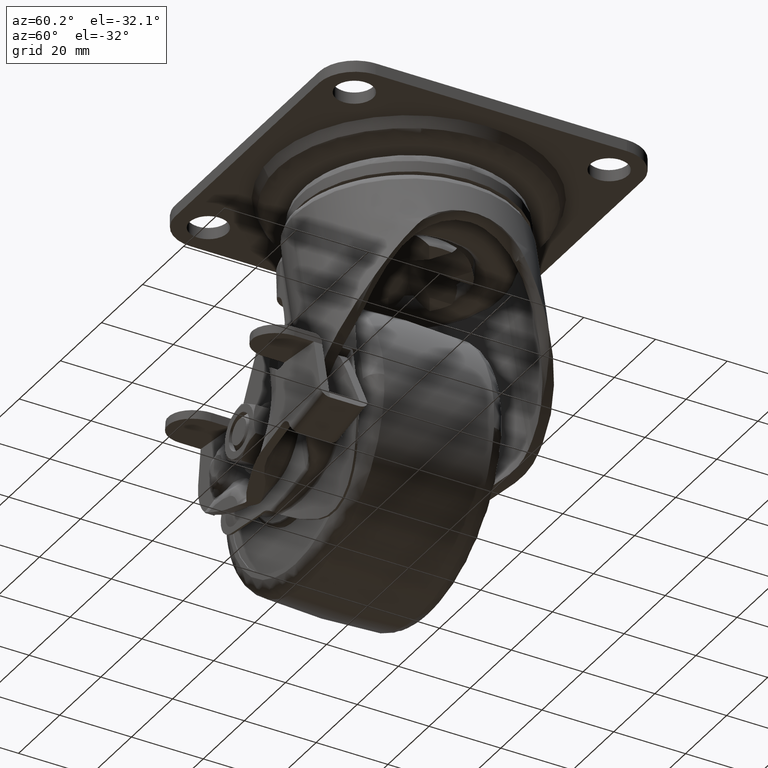
[diagram: clean part render]
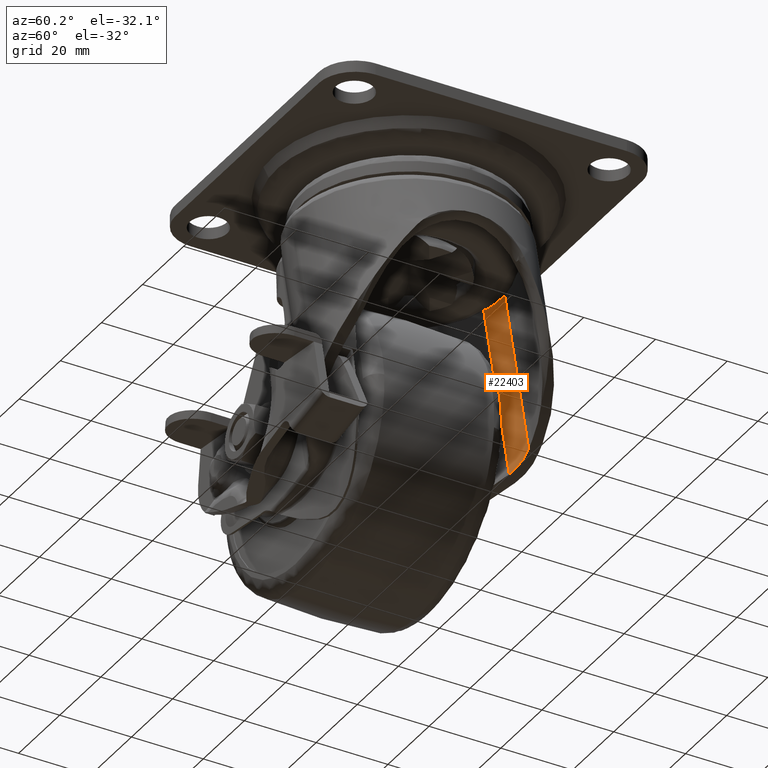
[diagram: same view with one face highlighted and labeled with its STEP entity id]
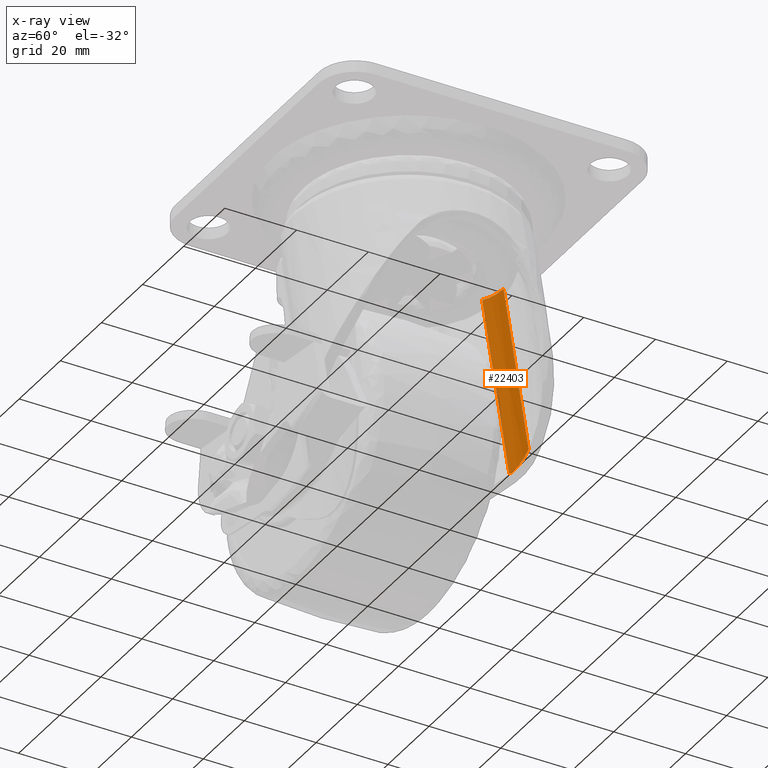
[diagram: x-ray of the same camera — body ghosted, the highlighted face saturated]
A machine part, auxiliary view. The second image highlights one B-rep face of the part: STEP entity #22403.
The next image is the same camera in x-ray: the body ghosted, the highlighted face saturated — about 2% of this face is hidden behind the body in this view.
In plain terms, the highlighted face is a freeform B-spline surface patch.
Its self-contained STEP definition (entity closure, byte-faithful):
#19096=CARTESIAN_POINT('',(8.629060861656448,28.449999999999999,-70.491567954269101));
#19097=VERTEX_POINT('',#19096);
#19111=CARTESIAN_POINT('',(2.794386821421890,26.404238769325900,-75.126501763025004));
#19112=VERTEX_POINT('',#19111);
#19113=CARTESIAN_POINT('',(2.794386821421890,26.404238769325900,-75.126501763025004));
#19114=CARTESIAN_POINT('',(3.250977676487589,26.750979657473941,-74.803486883613701));
#19115=CARTESIAN_POINT('',(3.718971263196048,27.050097362103369,-74.463825610801138));
#19116=CARTESIAN_POINT('',(4.673322900904312,27.561525688294029,-73.750958570744487));
#19117=CARTESIAN_POINT('',(5.159704318522079,27.773781589330511,-73.377747254189842));
#19118=CARTESIAN_POINT('',(5.777559535394476,27.986533044776451,-72.889275521287814));
#19119=CARTESIAN_POINT('',(5.901628179742154,28.026442931752921,-72.790480177604863));
#19120=CARTESIAN_POINT('',(6.150734107770560,28.100978503927092,-72.590650097973935));
#19121=CARTESIAN_POINT('',(6.275842320288908,28.135612351137461,-72.489554932290403));
#19122=CARTESIAN_POINT('',(6.650136886469880,28.230989270466701,-72.184857619424022));
#19123=CARTESIAN_POINT('',(6.899087578984503,28.283474197994590,-71.979210941133573));
#19124=CARTESIAN_POINT('',(7.644001883590186,28.408912964815340,-71.354700333325638));
#19125=CARTESIAN_POINT('',(8.138016356273411,28.450000000000010,-70.928277039378102));
#19126=CARTESIAN_POINT('',(8.629060861656448,28.449999999999999,-70.491567954269101));
#19127=B_SPLINE_CURVE_WITH_KNOTS('',3,(#19113,#19114,#19115,#19116,#19117,#19118,#19119,#19120,#19121,#19122,#19123,#19124,#19125,#19126),.UNSPECIFIED.,.F.,.U.,(4,2,2,2,2,2,4),(0.0,0.250000000000003,0.500000000000005,0.562500000000006,0.625000000000006,0.750000000000003,1.0),.UNSPECIFIED.);
#19128=EDGE_CURVE('',#19112,#19097,#19127,.T.);
#22359=CARTESIAN_POINT('',(-3.857655168790248,28.444957422023627,-15.200879385007463));
#22360=CARTESIAN_POINT('',(10.030902675946237,28.444957422023627,-74.982067279227763));
#22361=CARTESIAN_POINT('',(-7.814086522161550,28.562258768698815,-16.120050242021129));
#22362=CARTESIAN_POINT('',(6.074471322574935,28.562258768698822,-75.901238136241446));
#22363=CARTESIAN_POINT('',(-11.037521120194837,26.204159148412643,-16.868928935310493));
#22364=CARTESIAN_POINT('',(2.851036724541647,26.204159148412653,-76.650116829530802));
#22372=(BOUNDED_SURFACE()B_SPLINE_SURFACE(1,2,((#22359,#22361,#22363),(#22360,#22362,#22364)),.UNSPECIFIED.,.F.,.F.,.U.)B_SPLINE_SURFACE_WITH_KNOTS((2,2),(3,3),(0.0,61.373304172503737),(0.0,7.909893864623681),.UNSPECIFIED.)GEOMETRIC_REPRESENTATION_ITEM()RATIONAL_B_SPLINE_SURFACE(((0.999876801556363,0.944086852608485,0.991942174950719),(0.999876801556363,0.944086852608485,0.991942174950719)))REPRESENTATION_ITEM('')SURFACE());
#22373=CARTESIAN_POINT('',(-3.542716711529865,28.449999999999999,-18.100000000000001));
#22374=VERTEX_POINT('',#22373);
#22375=CARTESIAN_POINT('',(8.629060861656448,28.449999999999999,-70.491567954269101));
#22376=CARTESIAN_POINT('',(-3.542716711529865,28.449999999999999,-18.100000000000001));
#22377=QUASI_UNIFORM_CURVE('',1,(#22375,#22376),.UNSPECIFIED.,.F.,.U.);
#22378=EDGE_CURVE('',#19097,#22374,#22377,.T.);
#22379=ORIENTED_EDGE('',*,*,#22378,.T.);
#22380=CARTESIAN_POINT('',(-10.424942477553961,26.404238769325900,-18.225906503802850));
#22381=VERTEX_POINT('',#22380);
#22382=CARTESIAN_POINT('',(-3.542716711529867,28.449999999999999,-18.100000000000001));
#22383=CARTESIAN_POINT('',(-7.301587988307441,28.450000000000003,-18.168766465500145));
#22384=CARTESIAN_POINT('',(-10.424942477553961,26.404238769325890,-18.225906503802701));
#22392=(BOUNDED_CURVE()B_SPLINE_CURVE(2,(#22382,#22383,#22384),.UNSPECIFIED.,.F.,.U.)CURVE()GEOMETRIC_REPRESENTATION_ITEM()QUASI_UNIFORM_CURVE()RATIONAL_B_SPLINE_CURVE((1.0,0.956799044708761,1.0))REPRESENTATION_ITEM(''));
#22393=EDGE_CURVE('',#22374,#22381,#22392,.T.);
#22394=ORIENTED_EDGE('',*,*,#22393,.T.);
#22395=CARTESIAN_POINT('',(-10.424942477553961,26.404238769325900,-18.225906503802850));
#22396=CARTESIAN_POINT('',(2.794386821421890,26.404238769325900,-75.126501763025004));
#22397=QUASI_UNIFORM_CURVE('',1,(#22395,#22396),.UNSPECIFIED.,.F.,.U.);
#22398=EDGE_CURVE('',#22381,#19112,#22397,.T.);
#22399=ORIENTED_EDGE('',*,*,#22398,.T.);
#22400=ORIENTED_EDGE('',*,*,#19128,.T.);
#22401=EDGE_LOOP('',(#22379,#22394,#22399,#22400));
#22402=FACE_OUTER_BOUND('',#22401,.T.);
#22403=ADVANCED_FACE('',(#22402),#22372,.F.);